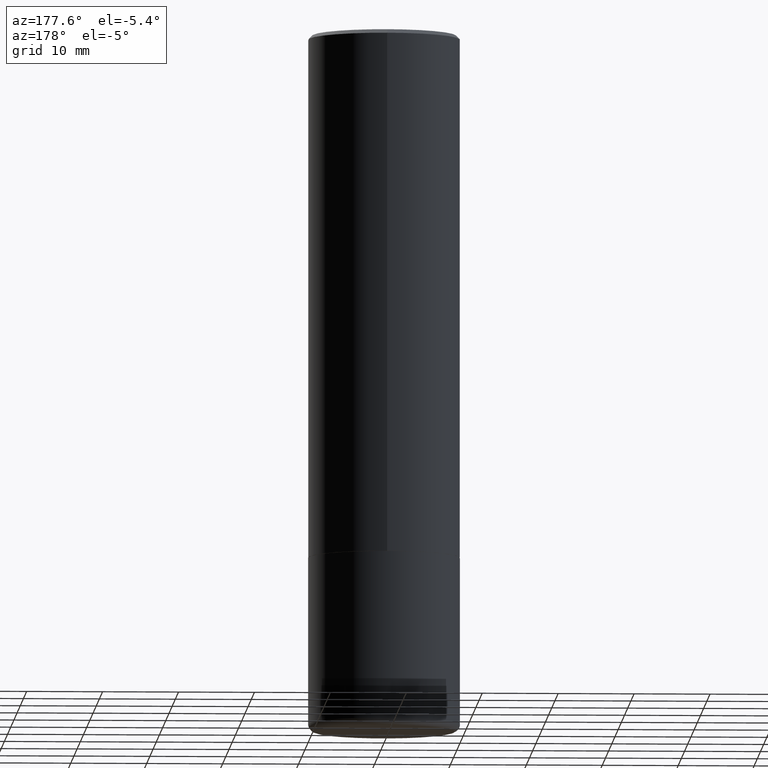
[diagram: clean part render]
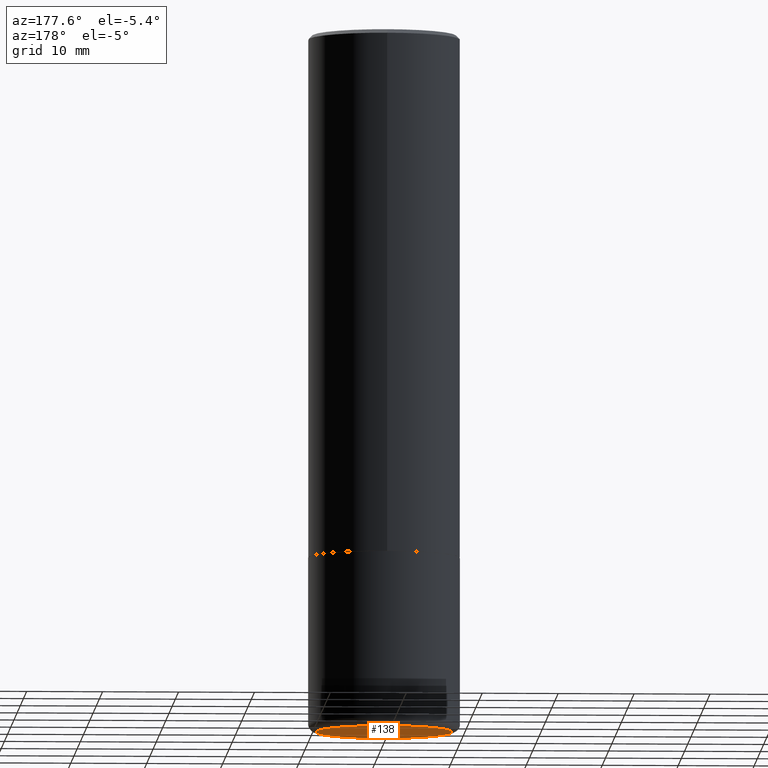
[diagram: same view with one face highlighted and labeled with its STEP entity id]
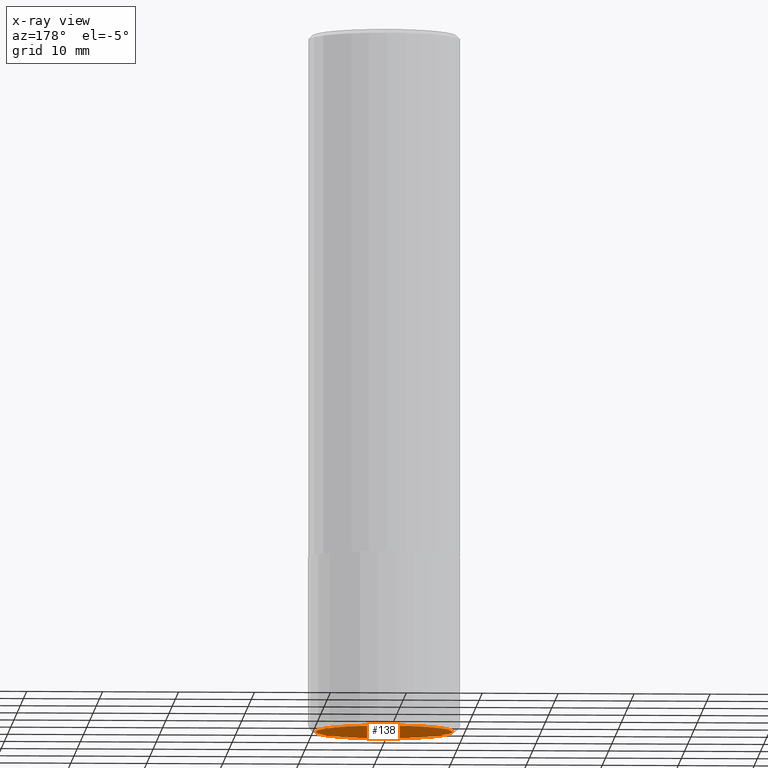
[diagram: x-ray of the same camera — body ghosted, the highlighted face saturated]
A machine part, auxiliary view. The second image highlights one B-rep face of the part: STEP entity #138.
The next image is the same camera in x-ray: the body ghosted, the highlighted face saturated — about 0% of this face is hidden behind the body in this view.
In plain terms, the highlighted planar face has unit normal (0, -0, -1).
Its self-contained STEP definition (entity closure, byte-faithful):
#8 = EDGE_CURVE ( 'NONE', #14, #297, #207, .T. ) ;
#14 = VERTEX_POINT ( 'NONE', #49 ) ;
#18 = CARTESIAN_POINT ( 'NONE',  ( 8.857488016002564476E-29, -1.264614540928987199E-14, -3.621999999999999886 ) ) ;
#20 = DIRECTION ( 'NONE',  ( -2.445468806185136597E-29, 3.491481338843145583E-15, 1.000000000000000000 ) ) ;
#27 = AXIS2_PLACEMENT_3D ( 'NONE', #18, #20, #133 ) ;
#49 = CARTESIAN_POINT ( 'NONE',  ( -0.3542999999999999483, -9.919933395171885327E-15, -3.621999999999999886 ) ) ;
#58 = ORIENTED_EDGE ( 'NONE', *, *, #213, .F. ) ;
#133 = DIRECTION ( 'NONE',  ( 1.000000000000000000, -6.982962677686268288E-15, 0.000000000000000000 ) ) ;
#138 = ADVANCED_FACE ( 'NONE', ( #211 ), #238, .T. ) ;
#152 = DIRECTION ( 'NONE',  ( 1.000000000000000000, -6.982962677686268288E-15, 0.000000000000000000 ) ) ;
#188 = DIRECTION ( 'NONE',  ( -2.445468806185136597E-29, 3.491481338843145583E-15, 1.000000000000000000 ) ) ;
#207 = CIRCLE ( 'NONE', #27, 0.3542999999999999483 ) ;
#210 = CARTESIAN_POINT ( 'NONE',  ( 8.857488016002564476E-29, -1.264614540928987199E-14, -3.621999999999999886 ) ) ;
#211 = FACE_OUTER_BOUND ( 'NONE', #233, .T. ) ;
#213 = EDGE_CURVE ( 'NONE', #297, #14, #313, .T. ) ;
#233 = EDGE_LOOP ( 'NONE', ( #58, #390 ) ) ;
#236 = DIRECTION ( 'NONE',  ( -1.000000000000000000, 6.982962677686265922E-15, -4.876176775795935793E-29 ) ) ;
#238 = PLANE ( 'NONE',  #402 ) ;
#260 = CARTESIAN_POINT ( 'NONE',  ( 0.3542999999999999483, -1.512020908599411520E-14, -3.621999999999999886 ) ) ;
#269 = DIRECTION ( 'NONE',  ( 2.438088387897960049E-29, -3.491481338843145188E-15, -1.000000000000000000 ) ) ;
#297 = VERTEX_POINT ( 'NONE', #260 ) ;
#313 = CIRCLE ( 'NONE', #399, 0.3542999999999999483 ) ;
#390 = ORIENTED_EDGE ( 'NONE', *, *, #8, .F. ) ;
#399 = AXIS2_PLACEMENT_3D ( 'NONE', #409, #188, #152 ) ;
#402 = AXIS2_PLACEMENT_3D ( 'NONE', #210, #269, #236 ) ;
#409 = CARTESIAN_POINT ( 'NONE',  ( 8.857488016002564476E-29, -1.264614540928987199E-14, -3.621999999999999886 ) ) ;